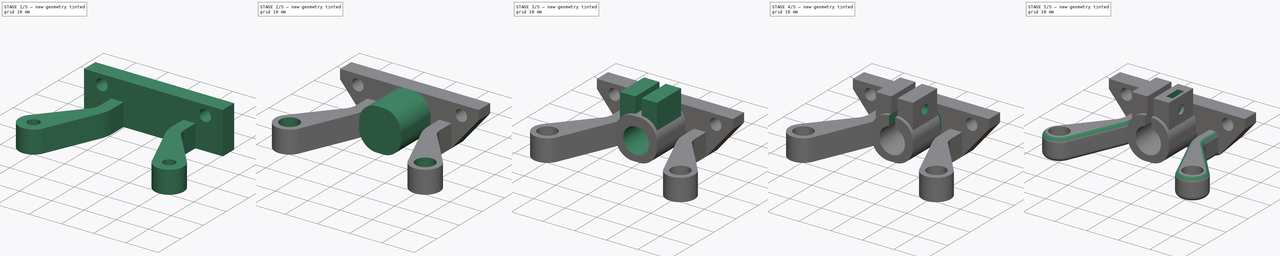
[diagram: build sequence overview — one tinted view per stage of 5, left to right]
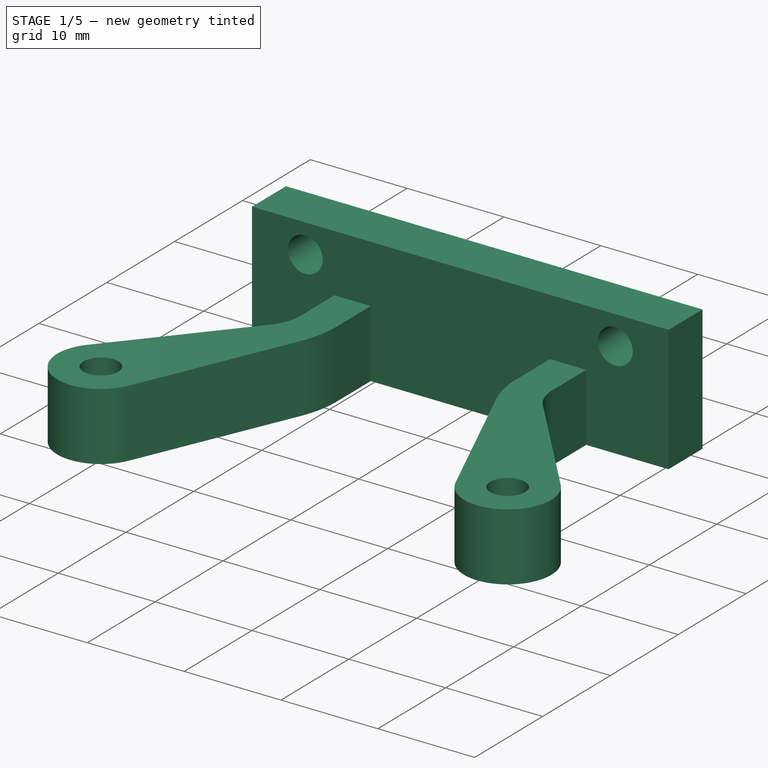
[diagram: stage 1 of 5 — iso view after this stage's code; geometry added in this stage tinted green]
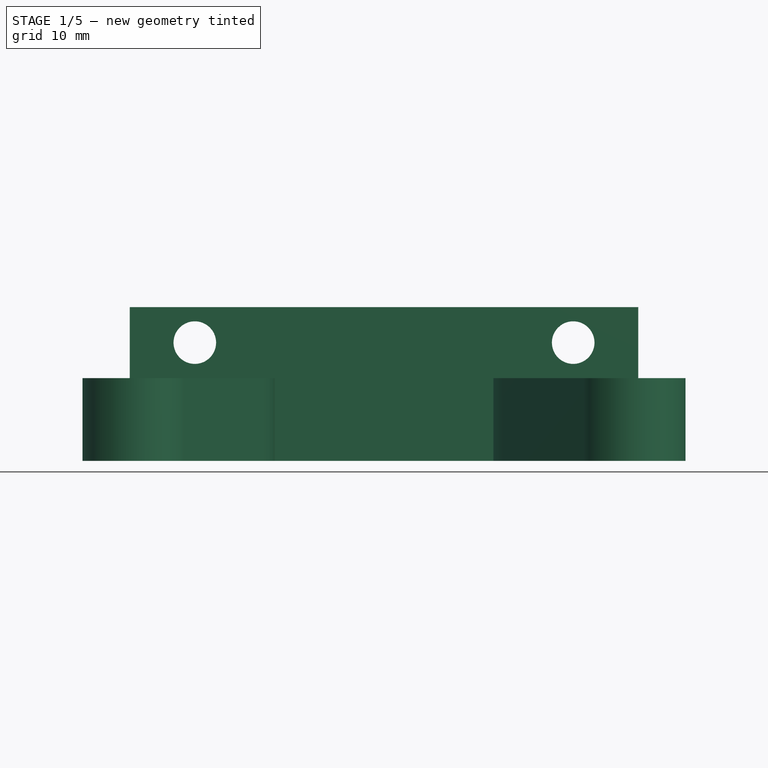
[diagram: stage 1 of 5 — front view after this stage's code; geometry added in this stage tinted green]
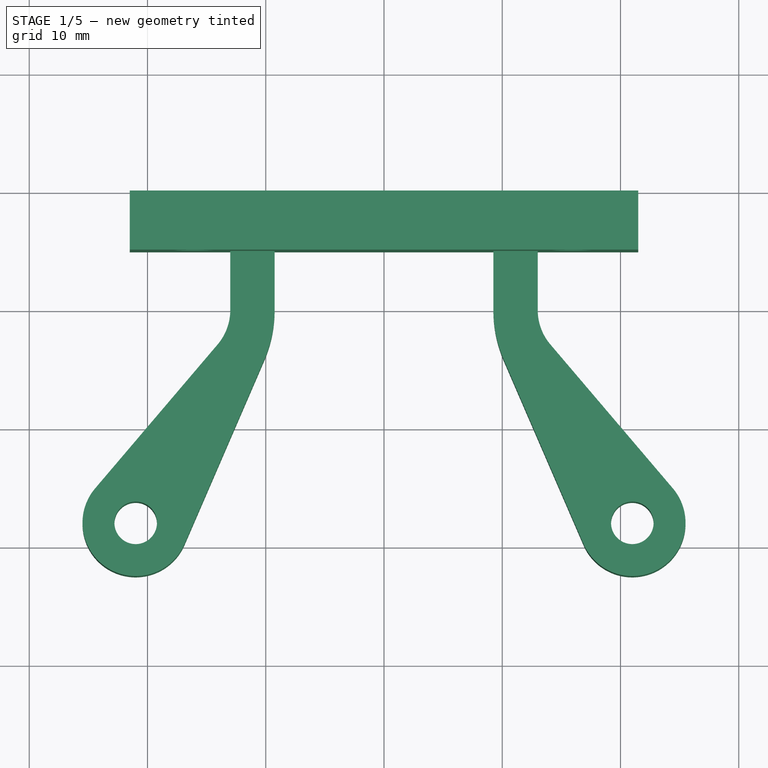
[diagram: stage 1 of 5 — top view after this stage's code; geometry added in this stage tinted green]
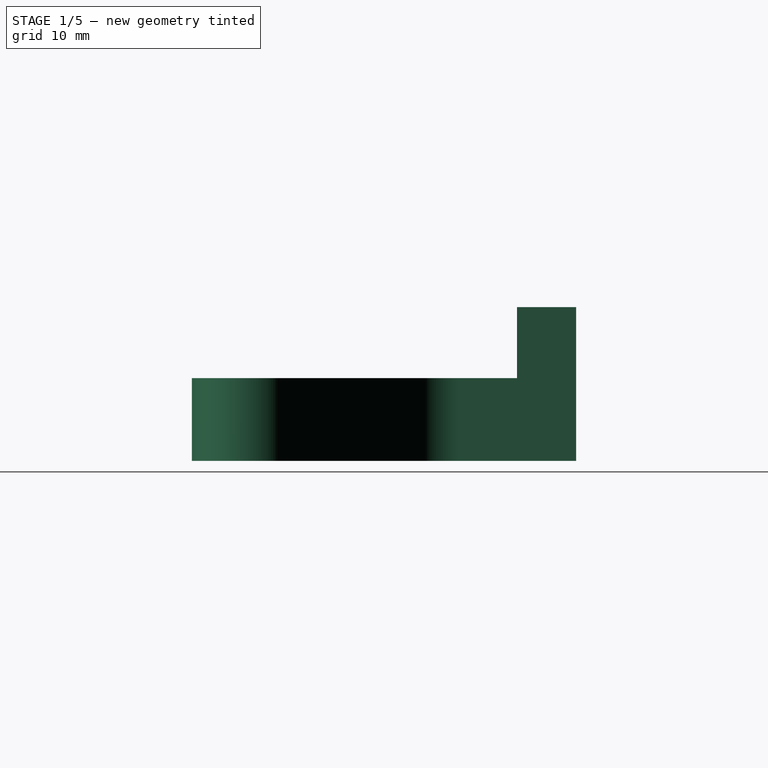
[diagram: stage 1 of 5 — right view after this stage's code; geometry added in this stage tinted green]
FCSTD DOCUMENT  (FreeCAD 1.0R39319 (Git))
Label: DragonPinda
License: All rights reserved
LicenseURL: https://en.wikipedia.org/wiki/All_rights_reserved
objects: Sketcher::SketchObject×14, PartDesign::Pocket×10, PartDesign::Pad×4, PartDesign::Fillet×2, App::VarSet×1, PartDesign::Body×1
note: 77 computed .brp shape members not serialized (recipe doc carries the construction recipe); baked Part::Feature solids carry a one-line shape summary decoded from their .brp

FEATURE [App::VarSet] VarSet
  BaseScrewDistance = 42
  BaseScrewFromTop = 28
  BendGap = 0.6
  BendGapDepth = 7.5
  ChannelGap = 2
  M25HeadDiameter = 4.6
  M25HeadHeight = 2.5
  M25HeatInsert5x4_Diameter = 2.9
  M25HeatInsert5x4_Height = 4.2
  M25NutDiameterMax = 5.8
  M25NutDiameterMin = 5.3
  M25NutHeigth = 2.1
  M25PassThroughDiameter = 2.8
  M25SelfTappingDiameter = 2.4
  M3HeadDiameter = 5.8
  M3HeadHeight = 3
  M3HeatInsert5x4_Diameter = 4.9
  M3HeatInsert5x4_Height = 4.2
  M3PassThroughDiameter = 3.6
  M3SelfTappingDiameter = 2.9
  PindaCenterOffset = 6
  PindaDiameter = 8.1
  PindaSupportLength = 18
  StructureHeight = 7
  SupportArc = 11
  TopHeight = 13
  TopScrewDistance = 32
  TopScrewFromBase = 10
  TopWidth = 43
FEATURE [Sketcher::SketchObject] Sketch
  ArcFitTolerance = 1e-06
  AttachmentSupport = -> [XY_Plane]
  FullyConstrained = true
  MakeInternals = false
  MapMode = 5
  expr: Constraints[25] = VarSet.BaseScrewDistance
  expr: Constraints[2] = VarSet.TopWidth
  expr: Constraints[37] = VarSet.BaseScrewFromTop
  expr: Constraints[59] = VarSet.M3PassThroughDiameter
  sketch-geometry (25):
    g0: LineSegment StartX=-21.5 StartY=0 StartZ=0 EndX=21.5 EndY=0 EndZ=0
    g1: LineSegment StartX=21.5 StartY=0 StartZ=0 EndX=21.5 EndY=-5 EndZ=0
    g2: LineSegment StartX=-21.5 StartY=0 StartZ=0 EndX=-21.5 EndY=-5 EndZ=0
    g3: LineSegment [constr] StartX=-13 StartY=-5 StartZ=0 EndX=13 EndY=-5 EndZ=0
    g4: LineSegment StartX=-21.5 StartY=-5 StartZ=0 EndX=-13 EndY=-5 EndZ=0
    g5: LineSegment StartX=21.5 StartY=-5 StartZ=0 EndX=13 EndY=-5 EndZ=0
    g6: LineSegment StartX=-13 StartY=-5 StartZ=0 EndX=-13 EndY=-10 EndZ=0
    g7: LineSegment StartX=13 StartY=-5 StartZ=0 EndX=13 EndY=-10 EndZ=0
    g8: Circle CenterX=-21 CenterY=-28 CenterZ=0 NormalX=0 NormalY=0 NormalZ=1 AngleXU=0 Radius=1.8
    g9: Circle CenterX=21 CenterY=-28 CenterZ=0 NormalX=0 NormalY=0 NormalZ=1 AngleXU=0 Radius=1.8
    g10: LineSegment [constr] StartX=-21 StartY=-28 StartZ=0 EndX=21 EndY=-28 EndZ=0
    g11: LineSegment StartX=-9.25 StartY=-5 StartZ=0 EndX=-9.25 EndY=-10 EndZ=0
    g12: LineSegment StartX=9.25 StartY=-5 StartZ=0 EndX=9.25 EndY=-10 EndZ=0
    g13: LineSegment StartX=-9.25 StartY=-5 StartZ=0 EndX=9.25 EndY=-5 EndZ=0
    g14: LineSegment [constr] StartX=0 StartY=0 StartZ=0 EndX=-1e-15 EndY=-28 EndZ=0
    g15: ArcOfCircle CenterX=-21 CenterY=-28 CenterZ=0 NormalX=0 NormalY=0 NormalZ=1 AngleXU=0 Radius=4.5 StartAngle=2.43653 EndAngle=5.87486
    g16: ArcOfCircle CenterX=21 CenterY=-28 CenterZ=0 NormalX=0 NormalY=0 NormalZ=1 AngleXU=0 Radius=4.5 StartAngle=3.54991 EndAngle=6.98825
    g17: ArcOfCircle CenterX=-17.5 CenterY=-10 CenterZ=0 NormalX=0 NormalY=0 NormalZ=1 AngleXU=0 Radius=4.5 StartAngle=5.57812 EndAngle=6.28319
    g18: ArcOfCircle CenterX=17.5 CenterY=-10 CenterZ=0 NormalX=0 NormalY=0 NormalZ=1 AngleXU=0 Radius=4.5 StartAngle=3.14159 EndAngle=3.84666
    g19: LineSegment StartX=14.0729 StartY=-12.9164 StartZ=0 EndX=24.4271 EndY=-25.0836 EndZ=0
    g20: LineSegment StartX=-14.0729 StartY=-12.9164 StartZ=0 EndX=-24.4271 EndY=-25.0836 EndZ=0
    g21: ArcOfCircle CenterX=-19.75 CenterY=-10 CenterZ=0 NormalX=0 NormalY=0 NormalZ=1 AngleXU=0 Radius=10.5 StartAngle=5.87486 EndAngle=6.28319
    g22: ArcOfCircle CenterX=19.75 CenterY=-10 CenterZ=0 NormalX=0 NormalY=0 NormalZ=1 AngleXU=0 Radius=10.5 StartAngle=3.14159 EndAngle=3.54991
    g23: LineSegment StartX=10.1132 StartY=-14.1692 StartZ=0 EndX=16.8699 EndY=-29.7868 EndZ=0
    g24: LineSegment StartX=-10.1132 StartY=-14.1692 StartZ=0 EndX=-16.8699 EndY=-29.7868 EndZ=0
  constraints (60):
    c: Horizontal(g0)
    c: Symmetric(g0,g0,g-1)
    c: Distance(g0) = 43
    c: Coincident(g1,g0)
    c: Vertical(g1)
    c: Coincident(g2,g0)
    c: Vertical(g2)
    c: Equal(g1,g2)
    c: Distance(g2) = 5
    c: Distance(g3) = 26
    c: Symmetric(g3,g3,g-2)
    c: Coincident(g4,g2)
    c: Coincident(g5,g1)
    c: Horizontal(g5)
    c: Coincident(g3,g5)
    c: Coincident(g4,g3)
    c: Coincident(g6,g3)
    c: Vertical(g6)
    c: Coincident(g7,g3)
    c: Vertical(g7)
    c: Distance(g6) = 5
    c: Equal(g6,g7)
    c: Coincident(g10,g8)
    c: Coincident(g10,g9)
    c: Symmetric(g9,g8,g-2)
    c: Distance(g10) = 42
    c: PointOnObject(g11,g3)
    c: Vertical(g11)
    c: Vertical(g12)
    c: Coincident(g13,g11)
    c: Coincident(g13,g12)
    c: Distance(g13) = 18.5
    c: Symmetric(g12,g11,g-2)
    c: Equal(g7,g12)
    c: Equal(g6,g11)
    c: Coincident(g14,g-1)
    c: Symmetric(g10,g10,g14)
    c: Distance(g14) = 28
    c: Coincident(g15,g8)
    c: Coincident(g16,g9)
    c: Equal(g15,g16)
    c: Diameter(g15) = 9
    c: Equal(g18,g15)
    c: Equal(g17,g16)
    c: Tangent(g17,g6) = 1.5708
    c: Tangent(g18,g7) = -1.5708
    c: Tangent(g19,g18) = -1.5708
    c: Tangent(g19,g16) = 1.5708
    c: Tangent(g20,g17) = 1.5708
    c: Tangent(g15,g20) = -1.5708
    c: Tangent(g21,g11) = 1.5708
    c: Tangent(g22,g12) = -1.5708
    c: Tangent(g23,g22) = -1.5708
    c: Tangent(g23,g16) = -1.5708
    c: Diameter(g22) = 21
    c: Equal(g22,g21)
    c: Tangent(g24,g21) = 1.5708
    c: Tangent(g24,g15) = 1.5708
    c: Equal(g8,g9)
    c: Diameter(g8) = 3.6
FEATURE [PartDesign::Pad] Pad  label="Base Structure"
  Direction = (0,0,1)
  Length = 7
  Length2 = 10
  Profile = -> Sketch
  ReferenceAxis = -> Sketch [N_Axis]
  Refine = true
  Suppressed = false
  Type = 0
  expr: Length = VarSet.StructureHeight
FEATURE [Sketcher::SketchObject] Sketch001
  ArcFitTolerance = 1e-06
  AttachmentSupport = -> [Pad]
  ExternalGeometry = -> [Pad]
  FullyConstrained = true
  MakeInternals = false
  MapMode = 5
  Placement = pos=(0,0,7) rot=(0,0,1;0rad)
  sketch-geometry (4):
    g0: LineSegment StartX=-21.5 StartY=0 StartZ=0 EndX=-21.5 EndY=-5 EndZ=0
    g1: LineSegment StartX=-21.5 StartY=-5 StartZ=0 EndX=21.5 EndY=-5 EndZ=0
    g2: LineSegment StartX=21.5 StartY=-5 StartZ=0 EndX=21.5 EndY=0 EndZ=0
    g3: LineSegment StartX=21.5 StartY=0 StartZ=0 EndX=-21.5 EndY=0 EndZ=0
  constraints (10):
    c: Coincident(g0,g1)
    c: Coincident(g1,g2)
    c: Coincident(g2,g3)
    c: Coincident(g3,g0)
    c: Vertical(g0)
    c: Vertical(g2)
    c: Horizontal(g1)
    c: Horizontal(g3)
    c: Coincident(g0,g-3)
    c: Coincident(g1,g-4)
FEATURE [PartDesign::Pad] Pad001  label="Top Support"
  BaseFeature = -> Pad
  Direction = (0,0,1)
  Length = 6
  Length2 = 10
  Profile = -> Sketch001
  ReferenceAxis = -> Sketch001 [N_Axis]
  Refine = true
  Suppressed = false
  Type = 0
  expr: Length = VarSet.TopHeight - VarSet.StructureHeight
FEATURE [Sketcher::SketchObject] Sketch002
  ArcFitTolerance = 1e-06
  AttachmentSupport = -> [Pad001]
  FullyConstrained = true
  MakeInternals = false
  MapMode = 5
  Placement = pos=(0,0,0) rot=(0,0.707107,0.707107;3.14159rad)
  expr: Constraints[3] = VarSet.TopScrewDistance
  expr: Constraints[5] = VarSet.M3PassThroughDiameter
  expr: Constraints[9] = VarSet.TopScrewFromBase
  sketch-geometry (4):
    g0: Circle CenterX=-16 CenterY=10 CenterZ=0 NormalX=0 NormalY=0 NormalZ=1 AngleXU=0 Radius=1.8
    g1: Circle CenterX=16 CenterY=10 CenterZ=0 NormalX=0 NormalY=0 NormalZ=1 AngleXU=0 Radius=1.8
    g2: LineSegment [constr] StartX=-16 StartY=10 StartZ=0 EndX=16 EndY=10 EndZ=0
    g3: LineSegment [constr] StartX=-16 StartY=10 StartZ=0 EndX=-16 EndY=0 EndZ=0
  constraints (10):
    c: Equal(g1,g0)
    c: Coincident(g2,g0)
    c: Coincident(g2,g1)
    c: Distance(g2) = 32
    c: Symmetric(g1,g0,g-2)
    c: Diameter(g0) = 3.6
    c: Coincident(g3,g0)
    c: PointOnObject(g3,g-1)
    c: Vertical(g3)
    c: Distance(g3) = 10
FEATURE [PartDesign::Pocket] Pocket  label="Top Screws"
  BaseFeature = -> Pad001
  Direction = (0,-1,2e-16)
  Length = 5
  Length2 = 5
  Profile = -> Sketch002
  ReferenceAxis = -> Sketch002 [N_Axis]
  Refine = true
  Suppressed = false
  Type = 1
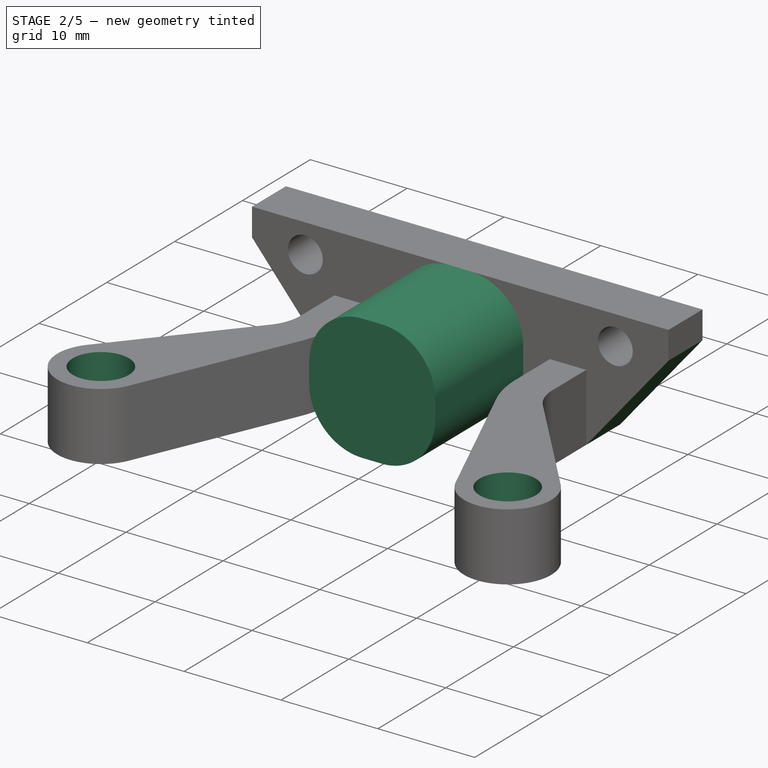
[diagram: stage 2 of 5 — iso view after this stage's code; geometry added in this stage tinted green]
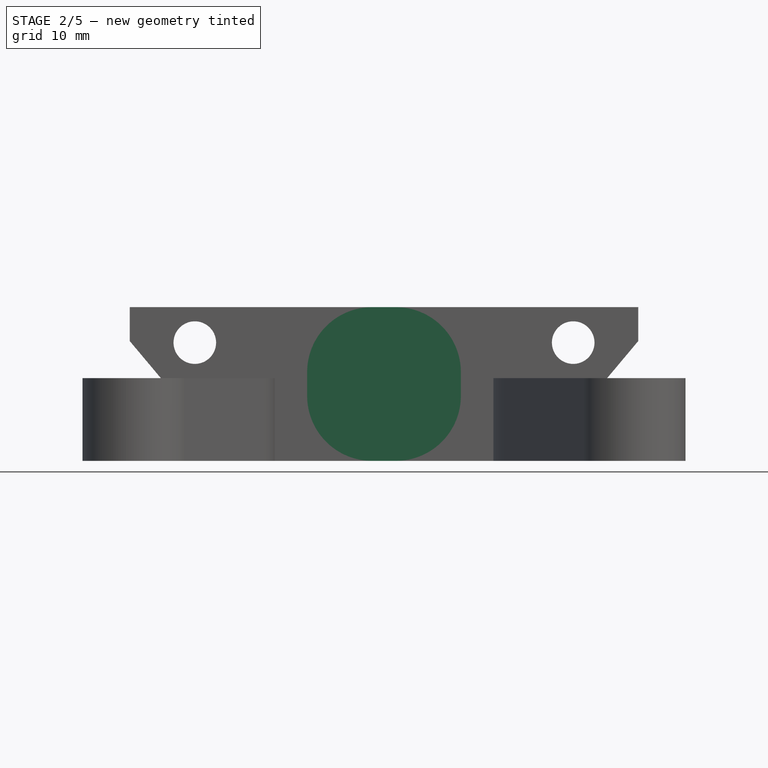
[diagram: stage 2 of 5 — front view after this stage's code; geometry added in this stage tinted green]
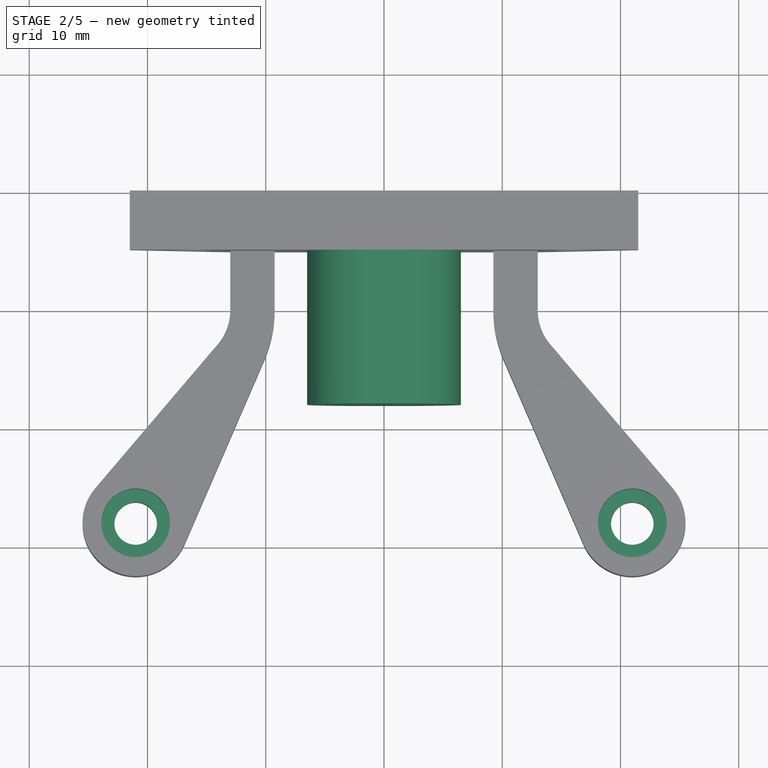
[diagram: stage 2 of 5 — top view after this stage's code; geometry added in this stage tinted green]
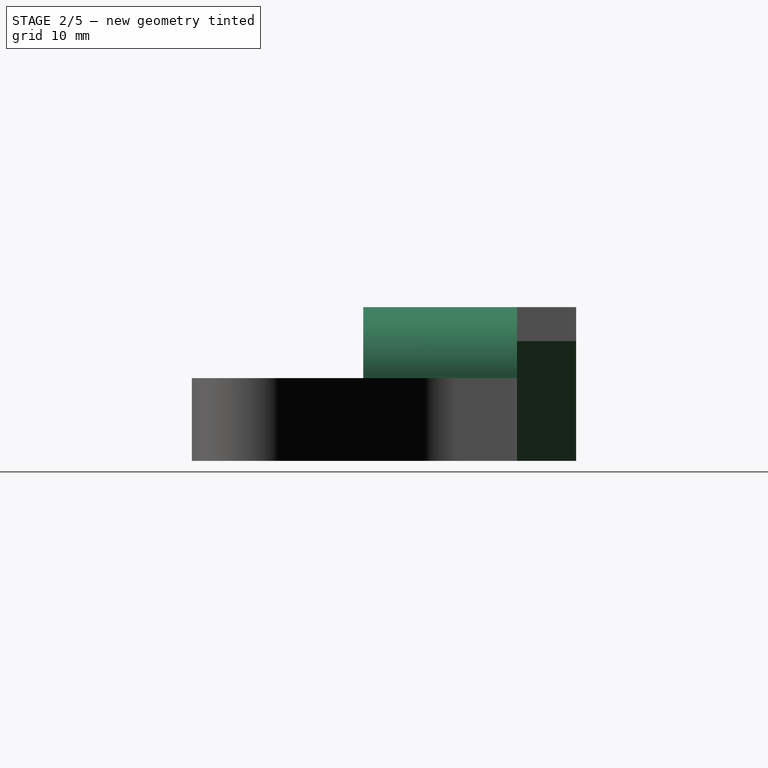
[diagram: stage 2 of 5 — right view after this stage's code; geometry added in this stage tinted green]
FEATURE [Sketcher::SketchObject] Sketch003
  ArcFitTolerance = 1e-06
  AttachmentSupport = -> [Pocket]
  FullyConstrained = true
  MakeInternals = false
  MapMode = 5
  Placement = pos=(0,0,0) rot=(0,0.707107,0.707107;3.14159rad)
  expr: Constraints[15] = VarSet.SupportArc
  expr: Constraints[16] = VarSet.TopHeight
  expr: Constraints[4] = VarSet.TopHeight
  sketch-geometry (12):
    g0: LineSegment StartX=-6.5 StartY=7.5 StartZ=0 EndX=-6.5 EndY=5.5 EndZ=0
    g1: LineSegment StartX=-1 StartY=0 StartZ=0 EndX=1 EndY=0 EndZ=0
    g2: LineSegment StartX=6.5 StartY=5.5 StartZ=0 EndX=6.5 EndY=7.5 EndZ=0
    g3: LineSegment StartX=1 StartY=13 StartZ=0 EndX=-1 EndY=13 EndZ=0
    g4: ArcOfCircle CenterX=1 CenterY=7.5 CenterZ=0 NormalX=0 NormalY=0 NormalZ=1 AngleXU=0 Radius=5.5 StartAngle=0 EndAngle=1.5708
    g5: GeomPoint [constr] X=6.5 Y=13 Z=0
    g6: ArcOfCircle CenterX=-1 CenterY=7.5 CenterZ=0 NormalX=0 NormalY=0 NormalZ=1 AngleXU=0 Radius=5.5 StartAngle=1.5708 EndAngle=3.14159
    g7: GeomPoint [constr] X=-6.5 Y=13 Z=0
    g8: ArcOfCircle CenterX=-1 CenterY=5.5 CenterZ=0 NormalX=0 NormalY=0 NormalZ=1 AngleXU=0 Radius=5.5 StartAngle=3.14159 EndAngle=4.71239
    g9: GeomPoint [constr] X=-6.5 Y=0 Z=0
    g10: ArcOfCircle CenterX=1 CenterY=5.5 CenterZ=0 NormalX=0 NormalY=0 NormalZ=1 AngleXU=0 Radius=5.5 StartAngle=4.71239 EndAngle=6.28319
    g11: GeomPoint [constr] X=6.5 Y=0 Z=0
  constraints (27):
    c: Vertical(g0)
    c: Vertical(g2)
    c: Horizontal(g3)
    c: PointOnObject(g11,g-1)
    c: Distance(g9,g7) = 13
    c: Symmetric(g9,g11,g-1)
    c: PointOnObject(g5,g2)
    c: PointOnObject(g5,g3)
    c: Tangent(g2,g4) = -1.5708
    c: Tangent(g3,g4) = -1.5708
    c: PointOnObject(g7,g0)
    c: PointOnObject(g7,g3)
    c: Tangent(g0,g6) = -1.5708
    c: Tangent(g3,g6) = -1.5708
    c: Equal(g4,g6)
    c: Diameter(g4) = 11
    c: Distance(g11,g9) = 13
    c: PointOnObject(g9,g0)
    c: PointOnObject(g9,g1)
    c: Tangent(g0,g8) = -1.5708
    c: Tangent(g1,g8) = -1.5708
    c: PointOnObject(g11,g1)
    c: PointOnObject(g11,g2)
    c: Tangent(g1,g10) = -1.5708
    c: Tangent(g2,g10) = -1.5708
    c: Equal(g10,g8)
    c: Equal(g4,g10)
FEATURE [PartDesign::Pad] Pad002  label="Pinda Support"
  BaseFeature = -> Pocket
  Direction = (0,1,-2e-16)
  Length = 18
  Length2 = 10
  Profile = -> Sketch003
  ReferenceAxis = -> Sketch003 [N_Axis]
  Refine = true
  Reversed = true
  Suppressed = false
  Type = 0
  expr: Length = VarSet.PindaSupportLength
FEATURE [Sketcher::SketchObject] Sketch004
  ArcFitTolerance = 1e-06
  AttachmentSupport = -> [Pad002]
  FullyConstrained = true
  MakeInternals = false
  MapMode = 5
  Placement = pos=(0,0,0) rot=(0,0.707107,0.707107;3.14159rad)
  expr: Constraints[0] = VarSet.PindaDiameter
  expr: Constraints[3] = VarSet.PindaCenterOffset
  sketch-geometry (2):
    g0: Circle CenterX=0 CenterY=6 CenterZ=0 NormalX=0 NormalY=0 NormalZ=1 AngleXU=0 Radius=4.05
    g1: LineSegment [constr] StartX=0 StartY=0 StartZ=0 EndX=0 EndY=6 EndZ=0
  constraints (5):
    c: Diameter(g0) = 8.1
    c: Coincident(g1,g-1)
    c: Coincident(g1,g0)
    c: Distance(g1) = 6
    c: Vertical(g1)
FEATURE [Sketcher::SketchObject] Sketch006
  ArcFitTolerance = 1e-06
  AttachmentSupport = -> [Pad002]
  ExternalGeometry = -> [Pad002]
  FullyConstrained = true
  MakeInternals = false
  MapMode = 5
  Placement = pos=(0,0,7) rot=(0,0,1;0rad)
  expr: Constraints[1] = VarSet.M3HeadDiameter
  sketch-geometry (2):
    g0: Circle CenterX=-21 CenterY=-28 CenterZ=0 NormalX=0 NormalY=0 NormalZ=1 AngleXU=0 Radius=2.9
    g1: Circle CenterX=21 CenterY=-28 CenterZ=0 NormalX=0 NormalY=0 NormalZ=1 AngleXU=0 Radius=2.9
  constraints (4):
    c: Equal(g0,g1)
    c: Diameter(g1) = 5.8
    c: Coincident(g1,g-4)
    c: Coincident(g0,g-3)
FEATURE [PartDesign::Pocket] Pocket003  label="Bottom Screws Recess"
  BaseFeature = -> Pad002
  Direction = (0,0,-1)
  Length = 3
  Length2 = 5
  Profile = -> Sketch006
  ReferenceAxis = -> Sketch006 [N_Axis]
  Refine = true
  Suppressed = false
  Type = 0
  expr: Length = VarSet.M3HeadHeight
FEATURE [Sketcher::SketchObject] Sketch007
  ArcFitTolerance = 1e-06
  AttachmentSupport = -> [Pocket003]
  ExternalGeometry = -> [Pocket003]
  FullyConstrained = true
  MakeInternals = false
  MapMode = 5
  Placement = pos=(0,-5,0) rot=(1,0,0;1.5708rad)
  sketch-geometry (6):
    g0: LineSegment StartX=-13 StartY=0 StartZ=0 EndX=-21.5 EndY=10.1299 EndZ=0
    g1: LineSegment StartX=13 StartY=0 StartZ=0 EndX=21.5 EndY=10.1299 EndZ=0
    g2: LineSegment StartX=-21.5 StartY=10.1299 StartZ=0 EndX=-21.5 EndY=0 EndZ=0
    g3: LineSegment StartX=-13 StartY=0 StartZ=0 EndX=-21.5 EndY=0 EndZ=0
    g4: LineSegment StartX=13 StartY=0 StartZ=0 EndX=21.5 EndY=0 EndZ=0
    g5: LineSegment StartX=21.5 StartY=10.1299 StartZ=0 EndX=21.5 EndY=0 EndZ=0
  constraints (14):
    c: Coincident(g0,g-5)
    c: Coincident(g1,g-3)
    c: PointOnObject(g1,g-4)
    c: PointOnObject(g0,g-6)
    c: Angle(g0) = 2.26893
    c: Angle(g1) = 0.872665
    c: Coincident(g2,g0)
    c: Coincident(g2,g-6)
    c: Coincident(g3,g0)
    c: Coincident(g3,g2)
    c: Coincident(g4,g1)
    c: Coincident(g4,g-4)
    c: Coincident(g5,g1)
    c: Coincident(g5,g4)
FEATURE [PartDesign::Pocket] Pocket004  label="Angled Face"
  BaseFeature = -> Pocket003
  Direction = (0,1,-2e-16)
  Length = 5
  Length2 = 5
  Profile = -> Sketch007
  ReferenceAxis = -> Sketch007 [N_Axis]
  Refine = true
  Suppressed = false
  Type = 1
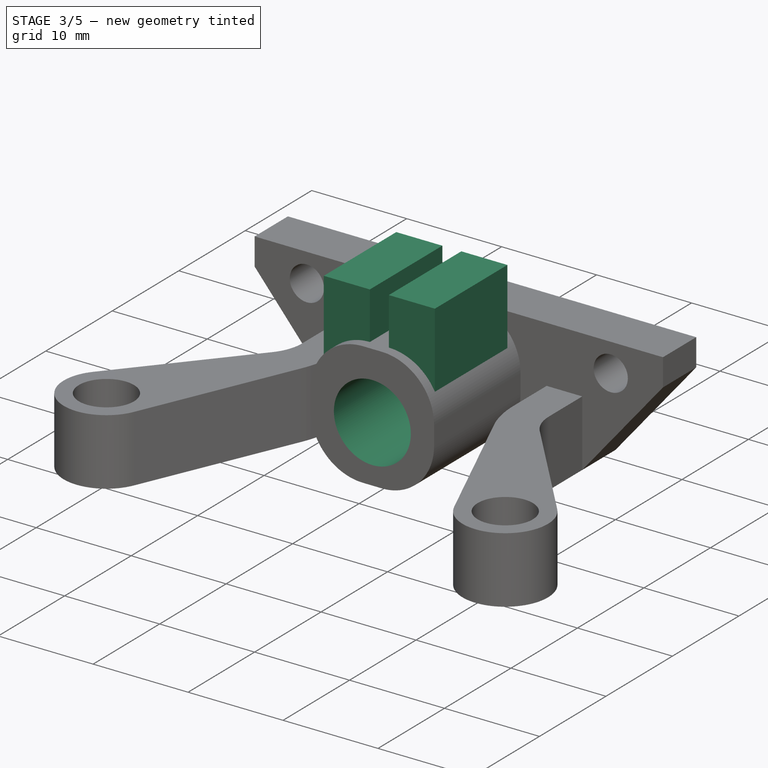
[diagram: stage 3 of 5 — iso view after this stage's code; geometry added in this stage tinted green]
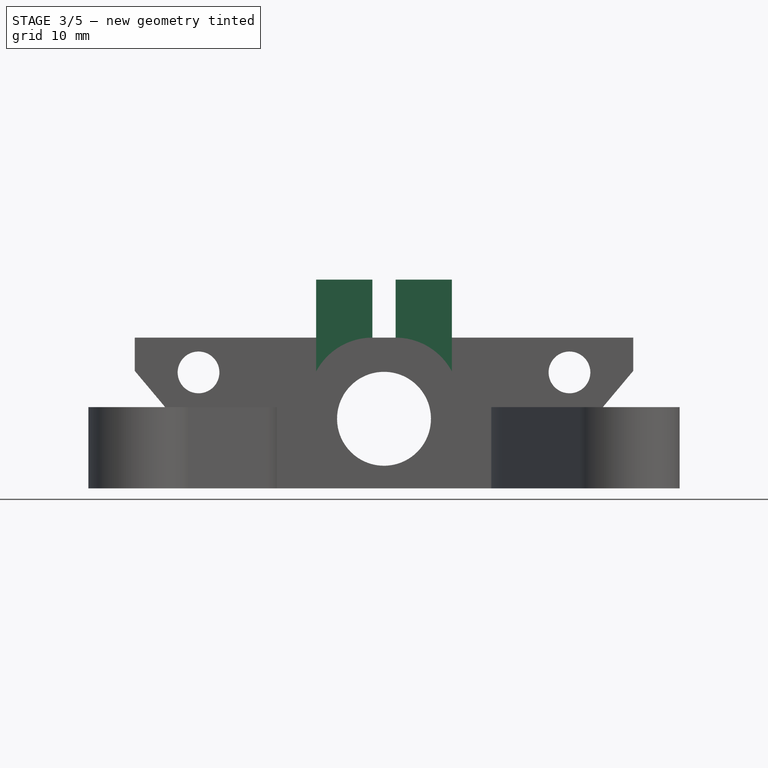
[diagram: stage 3 of 5 — front view after this stage's code; geometry added in this stage tinted green]
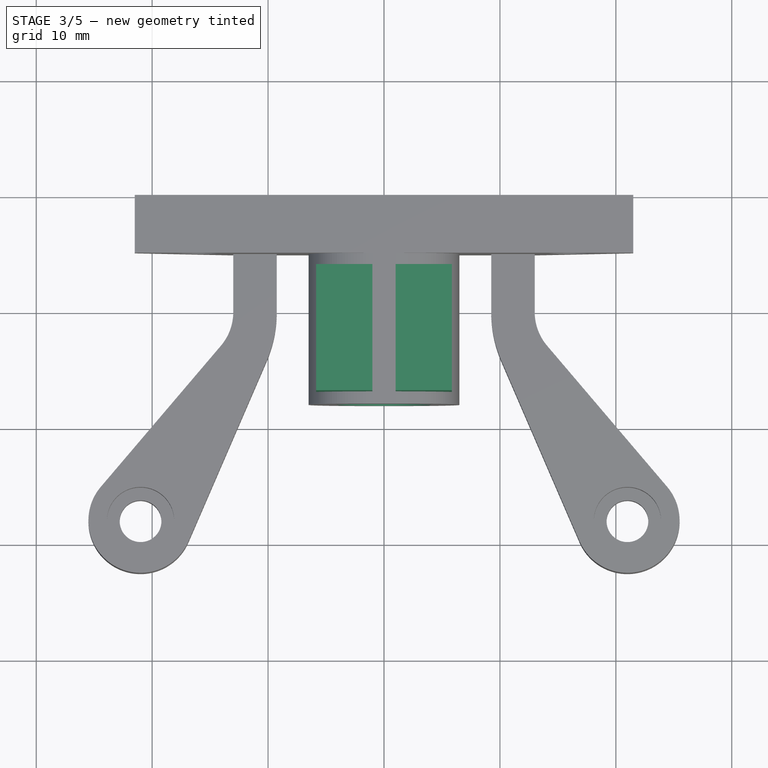
[diagram: stage 3 of 5 — top view after this stage's code; geometry added in this stage tinted green]
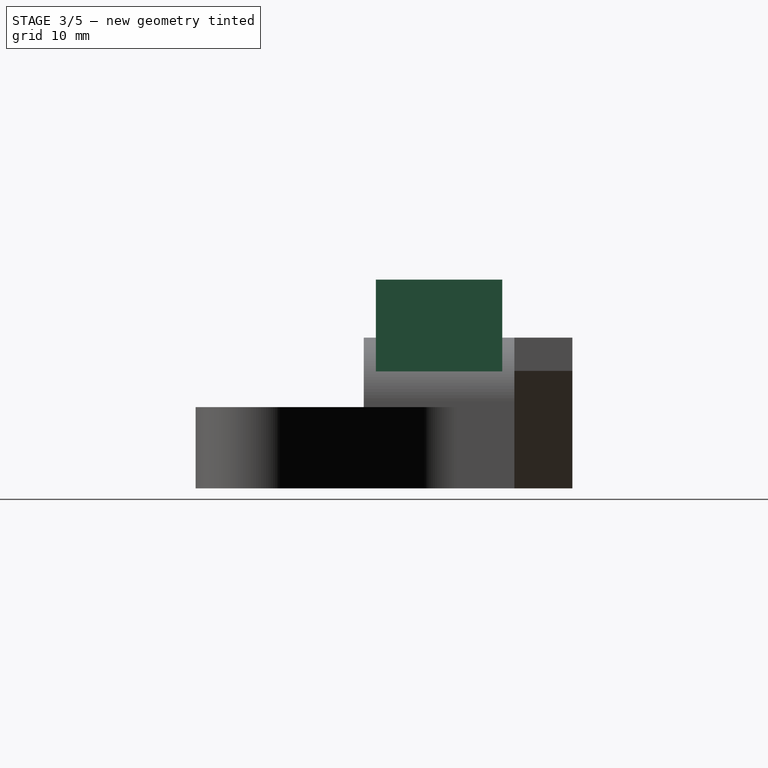
[diagram: stage 3 of 5 — right view after this stage's code; geometry added in this stage tinted green]
FEATURE [Sketcher::SketchObject] Sketch008
  ArcFitTolerance = 1e-06
  AttachmentSupport = -> [Pocket004]
  ExternalGeometry = -> [Pocket004]
  FullyConstrained = true
  MakeInternals = false
  MapMode = 5
  Placement = pos=(0,0,13) rot=(0,0,1;0rad)
  expr: Constraints[13] = VarSet.ChannelGap
  expr: Constraints[6] = VarSet.M25HeatInsert5x4_Diameter + 8 mm
  expr: Constraints[7] = VarSet.M25HeatInsert5x4_Height + VarSet.ChannelGap + 3 mm + VarSet.M25HeadHeight
  sketch-geometry (12):
    g0: LineSegment StartX=-5.85 StartY=-6.05 StartZ=0 EndX=-5.85 EndY=-16.95 EndZ=0
    g1: LineSegment [constr] StartX=-5.85 StartY=-16.95 StartZ=0 EndX=5.85 EndY=-16.95 EndZ=0
    g2: LineSegment StartX=5.85 StartY=-16.95 StartZ=0 EndX=5.85 EndY=-6.05 EndZ=0
    g3: LineSegment StartX=-5.85 StartY=-16.95 StartZ=0 EndX=-1 EndY=-16.95 EndZ=0
    g4: LineSegment [constr] StartX=-1 StartY=-16.95 StartZ=0 EndX=1 EndY=-16.95 EndZ=0
    g5: LineSegment StartX=5.85 StartY=-16.95 StartZ=0 EndX=1 EndY=-16.95 EndZ=0
    g6: LineSegment StartX=-1 StartY=-16.95 StartZ=0 EndX=-1 EndY=-6.05 EndZ=0
    g7: LineSegment StartX=1 StartY=-16.95 StartZ=0 EndX=1 EndY=-6.05 EndZ=0
    g8: LineSegment StartX=5.85 StartY=-6.05 StartZ=0 EndX=1 EndY=-6.05 EndZ=0
    g9: LineSegment StartX=-5.85 StartY=-6.05 StartZ=0 EndX=-1 EndY=-6.05 EndZ=0
    g10: LineSegment [constr] StartX=5.85 StartY=-6.05 StartZ=0 EndX=5.85 EndY=-5 EndZ=0
    g11: LineSegment [constr] StartX=5.85 StartY=-16.95 StartZ=0 EndX=5.85 EndY=-18 EndZ=0
  constraints (33):
    c: Coincident(g0,g1)
    c: Coincident(g1,g2)
    c: Vertical(g0)
    c: Vertical(g2)
    c: Horizontal(g1)
    c: Symmetric(g0,g2,g-2)
    c: Distance(g2) = 10.9
    c: Distance(g1) = 11.7
    c: Coincident(g3,g0)
    c: Coincident(g4,g3)
    c: Horizontal(g4)
    c: Coincident(g5,g1)
    c: Coincident(g5,g4)
    c: Distance(g4) = 2
    c: Equal(g5,g3)
    c: Horizontal(g5)
    c: Coincident(g6,g3)
    c: Vertical(g6)
    c: Coincident(g7,g4)
    c: Vertical(g7)
    c: Coincident(g8,g2)
    c: Horizontal(g8)
    c: Coincident(g9,g0)
    c: Horizontal(g9)
    c: Coincident(g6,g9)
    c: Coincident(g7,g8)
    c: Coincident(g10,g2)
    c: Vertical(g10)
    c: Coincident(g11,g1)
    c: Vertical(g11)
    c: PointOnObject(g11,g-4)
    c: PointOnObject(g10,g-3)
    c: Equal(g10,g11)
FEATURE [PartDesign::Pad] Pad003  label="Brace"
  BaseFeature = -> Pocket004
  Direction = (0,0,1)
  Length = 5
  Length2 = 3
  Profile = -> Sketch008
  ReferenceAxis = -> Sketch008 [N_Axis]
  Refine = true
  Suppressed = false
  Type = 4
FEATURE [PartDesign::Pocket] Pocket001  label="Pinda Tunnel"
  BaseFeature = -> Pad003
  Direction = (0,-1,2e-16)
  Length = 5
  Length2 = 5
  Profile = -> Sketch004
  ReferenceAxis = -> Sketch004 [N_Axis]
  Refine = true
  Suppressed = false
  Type = 1
FEATURE [Sketcher::SketchObject] Sketch009
  ArcFitTolerance = 1e-06
  AttachmentSupport = -> [Pocket001]
  ExternalGeometry = -> [Pocket001]
  FullyConstrained = true
  MakeInternals = false
  MapMode = 5
  Placement = pos=(-5.85,0,0) rot=(0.57735,-0.57735,-0.57735;2.0944rad)
  expr: Constraints[0] = VarSet.M25PassThroughDiameter
  sketch-geometry (3):
    g0: Circle CenterX=11.5 CenterY=14.0469 CenterZ=0 NormalX=0 NormalY=0 NormalZ=1 AngleXU=0 Radius=1.4
    g1: LineSegment [constr] StartX=16.95 StartY=10.0937 StartZ=0 EndX=11.5 EndY=14.0469 EndZ=0
    g2: LineSegment [constr] StartX=6.05 StartY=18 StartZ=0 EndX=11.5 EndY=14.0469 EndZ=0
  constraints (7):
    c: Diameter(g0) = 2.8
    c: Coincident(g1,g-4)
    c: Coincident(g1,g0)
    c: Coincident(g2,g-3)
    c: Coincident(g2,g0)
    c: Equal(g2,g1)
    c: Parallel(g1,g2)
FEATURE [Sketcher::SketchObject] Sketch015
  ArcFitTolerance = 1e-06
  AttachmentSupport = -> [Pocket001]
  ExternalGeometry = -> [Pocket001]
  FullyConstrained = true
  MakeInternals = false
  MapMode = 5
  Placement = pos=(0,0,0) rot=(0,0.707107,0.707107;3.14159rad)
  expr: Constraints[1] = VarSet.PindaDiameter + 0.5 mm
  sketch-geometry (1):
    g0: Circle CenterX=0 CenterY=6 CenterZ=0 NormalX=0 NormalY=0 NormalZ=1 AngleXU=0 Radius=4.3
  constraints (2):
    c: Coincident(g0,g-3)
    c: Diameter(g0) = 8.6
FEATURE [PartDesign::Pocket] Pocket011  label="Larger Pinda Entry"
  BaseFeature = -> Pocket001
  Direction = (0,-1,2e-16)
  Length = 8
  Length2 = 5
  Profile = -> Sketch015
  ReferenceAxis = -> Sketch015 [N_Axis]
  Refine = true
  Suppressed = false
  Type = 0
FEATURE [PartDesign::Fillet] Fillet  label="Rounded Pinda Entry"
  Base = -> Pocket011 [Edge31]
  BaseFeature = -> Pocket011
  Radius = 2
  Refine = true
  SupportTransform = false
  Suppressed = false
  UseAllEdges = false
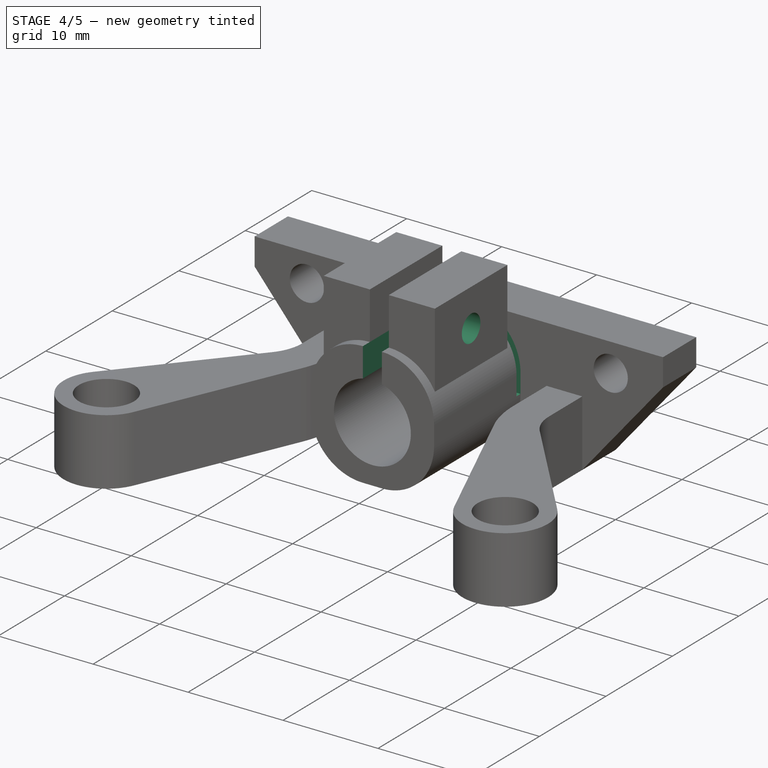
[diagram: stage 4 of 5 — iso view after this stage's code; geometry added in this stage tinted green]
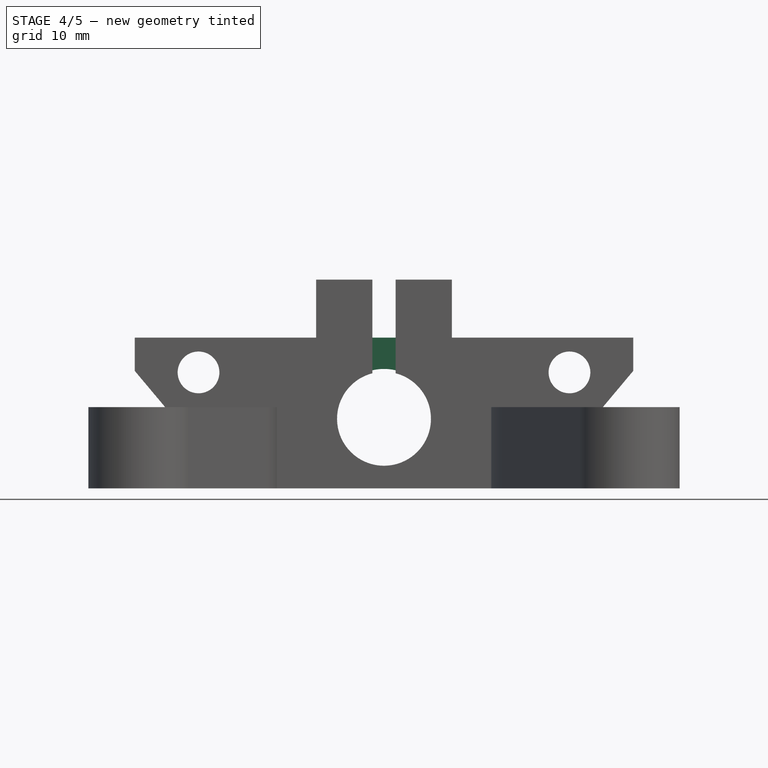
[diagram: stage 4 of 5 — front view after this stage's code; geometry added in this stage tinted green]
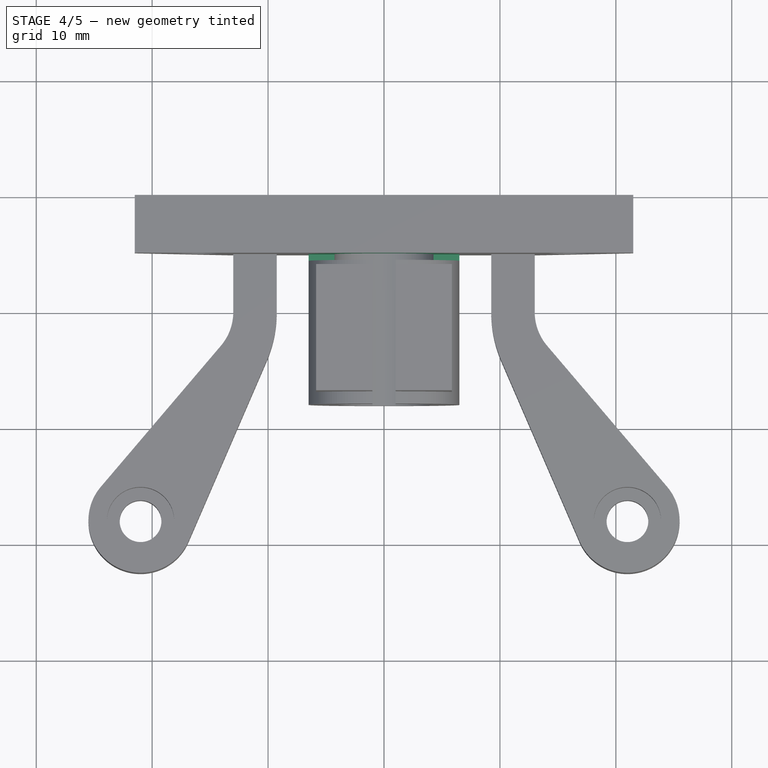
[diagram: stage 4 of 5 — top view after this stage's code; geometry added in this stage tinted green]
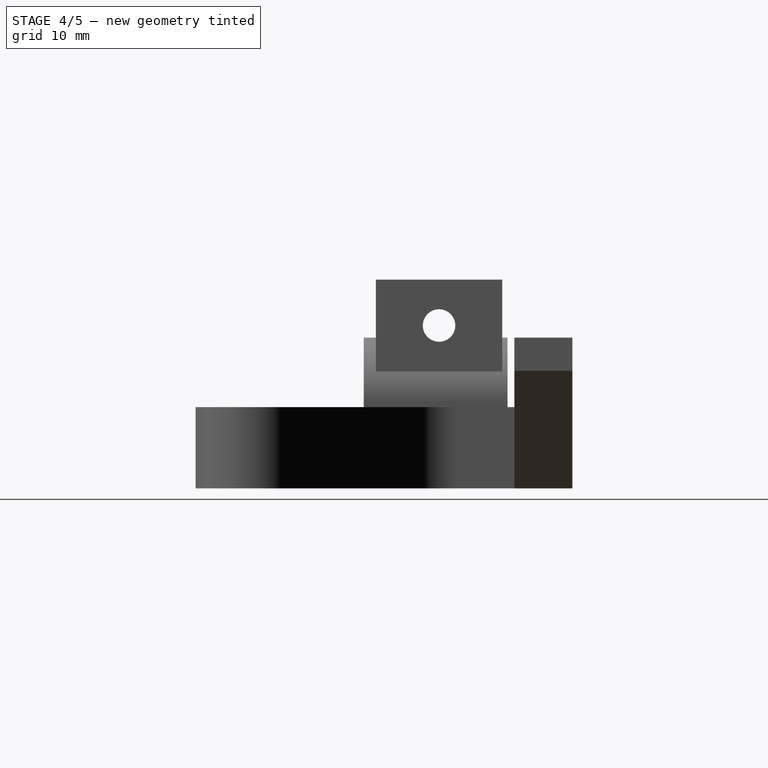
[diagram: stage 4 of 5 — right view after this stage's code; geometry added in this stage tinted green]
FEATURE [PartDesign::Pocket] Pocket005  label="Brace Screw hole"
  BaseFeature = -> Fillet
  Direction = (1,0,0)
  Length = 5
  Length2 = 5
  Profile = -> Sketch009
  ReferenceAxis = -> Sketch009 [N_Axis]
  Refine = true
  Suppressed = false
  Type = 1
FEATURE [Sketcher::SketchObject] Sketch011
  ArcFitTolerance = 1e-06
  AttachmentSupport = -> [Pocket005]
  ExternalGeometry = -> [Pocket005]
  FullyConstrained = true
  MakeInternals = false
  MapMode = 5
  Placement = pos=(-5.85,0,0) rot=(0.57735,-0.57735,-0.57735;2.0944rad)
  expr: Constraints[0] = VarSet.M25HeadDiameter
  sketch-geometry (1):
    g0: Circle CenterX=11.5 CenterY=14.0469 CenterZ=0 NormalX=0 NormalY=0 NormalZ=1 AngleXU=0 Radius=2.3
  constraints (2):
    c: Diameter(g0) = 4.6
    c: Coincident(g0,g-3)
FEATURE [PartDesign::Pocket] Pocket007  label="Brace Screw Head"
  BaseFeature = -> Pocket005
  Direction = (1,0,0)
  Length = 2.5
  Length2 = 5
  Profile = -> Sketch011
  ReferenceAxis = -> Sketch011 [N_Axis]
  Refine = true
  Suppressed = false
  Type = 0
  expr: Length = VarSet.M25HeadHeight
FEATURE [Sketcher::SketchObject] Sketch012
  ArcFitTolerance = 1e-06
  AttachmentSupport = -> [Pocket007]
  ExternalGeometry = -> [Pocket007]
  FullyConstrained = true
  MakeInternals = false
  MapMode = 5
  Placement = pos=(0,0,13) rot=(0,0,1;0rad)
  expr: Constraints[17] = VarSet.BendGap
  sketch-geometry (8):
    g0: LineSegment StartX=-1 StartY=-18 StartZ=0 EndX=1 EndY=-18 EndZ=0
    g1: LineSegment StartX=1 StartY=-18 StartZ=0 EndX=1 EndY=-5.6 EndZ=0
    g2: LineSegment StartX=-1 StartY=-18 StartZ=0 EndX=-1 EndY=-5.6 EndZ=0
    g3: LineSegment StartX=-6.5 StartY=-5 StartZ=0 EndX=6.5 EndY=-5 EndZ=0
    g4: LineSegment StartX=6.5 StartY=-5 StartZ=0 EndX=6.5 EndY=-5.6 EndZ=0
    g5: LineSegment StartX=6.5 StartY=-5.6 StartZ=0 EndX=1 EndY=-5.6 EndZ=0
    g6: LineSegment StartX=-6.5 StartY=-5 StartZ=0 EndX=-6.5 EndY=-5.6 EndZ=0
    g7: LineSegment StartX=-6.5 StartY=-5.6 StartZ=0 EndX=-1 EndY=-5.6 EndZ=0
  constraints (20):
    c: Coincident(g0,g-6)
    c: Coincident(g0,g-5)
    c: Coincident(g1,g0)
    c: Vertical(g1)
    c: Coincident(g2,g0)
    c: Vertical(g2)
    c: Equal(g1,g2)
    c: Coincident(g3,g-4)
    c: Coincident(g3,g-3)
    c: Coincident(g4,g3)
    c: PointOnObject(g4,g-3)
    c: Coincident(g5,g4)
    c: Horizontal(g5)
    c: Coincident(g6,g3)
    c: PointOnObject(g6,g-4)
    c: Coincident(g7,g6)
    c: Horizontal(g7)
    c: Distance(g4) = 0.6
    c: Coincident(g1,g5)
    c: Coincident(g2,g7)
FEATURE [PartDesign::Pocket] Pocket008  label="Tunnel Cut"
  BaseFeature = -> Pocket007
  Direction = (0,0,-1)
  Length = 7.5
  Length2 = 5
  Profile = -> Sketch012
  ReferenceAxis = -> Sketch012 [N_Axis]
  Refine = true
  Suppressed = false
  Type = 0
  expr: Length = VarSet.BendGapDepth
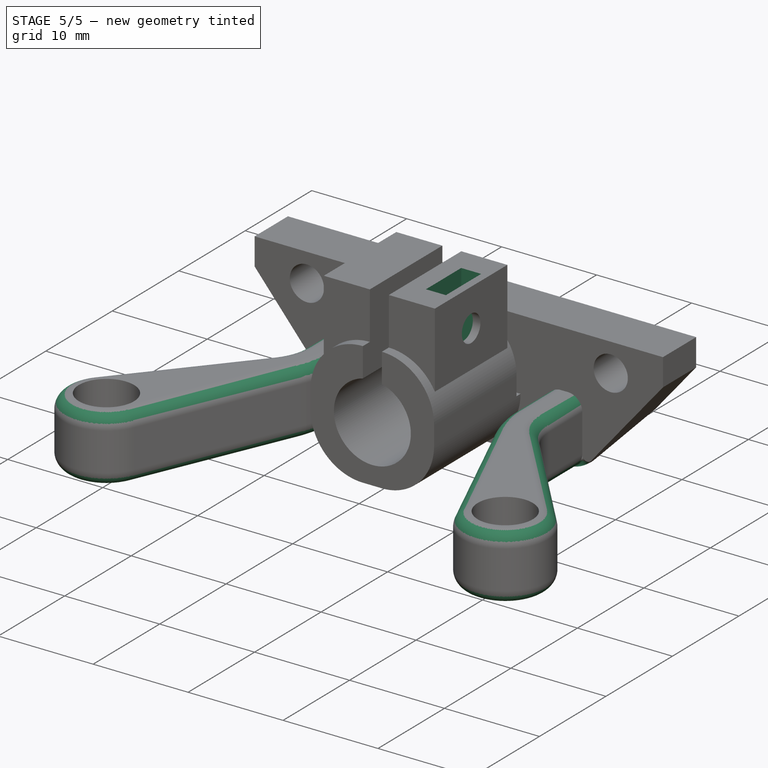
[diagram: stage 5 of 5 — iso view after this stage's code; geometry added in this stage tinted green]
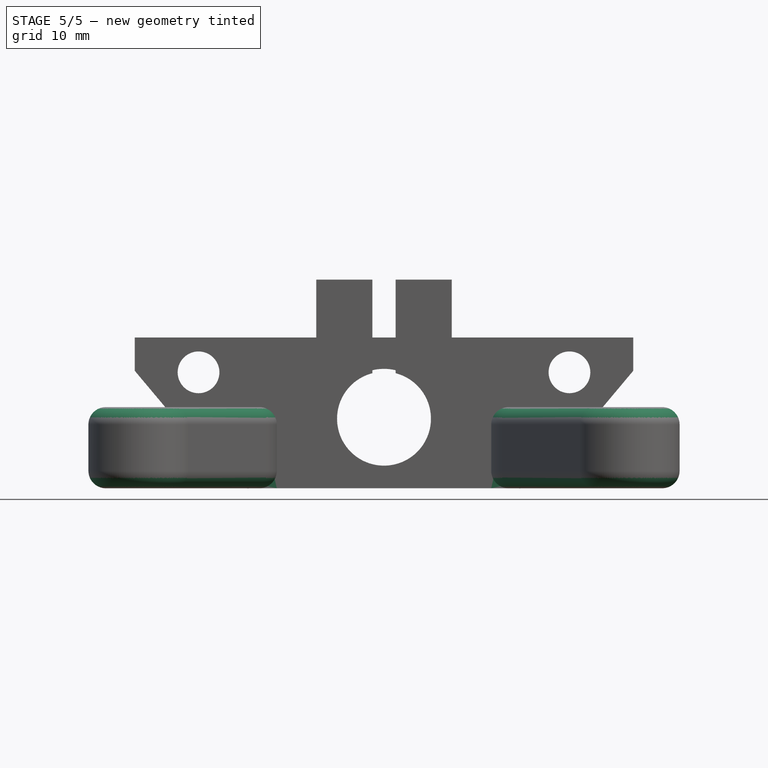
[diagram: stage 5 of 5 — front view after this stage's code; geometry added in this stage tinted green]
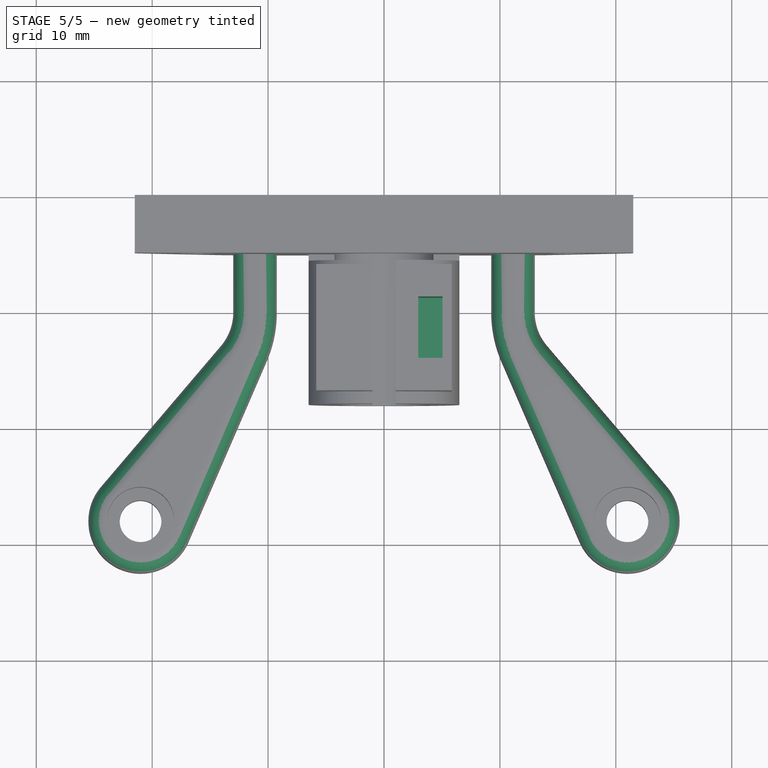
[diagram: stage 5 of 5 — top view after this stage's code; geometry added in this stage tinted green]
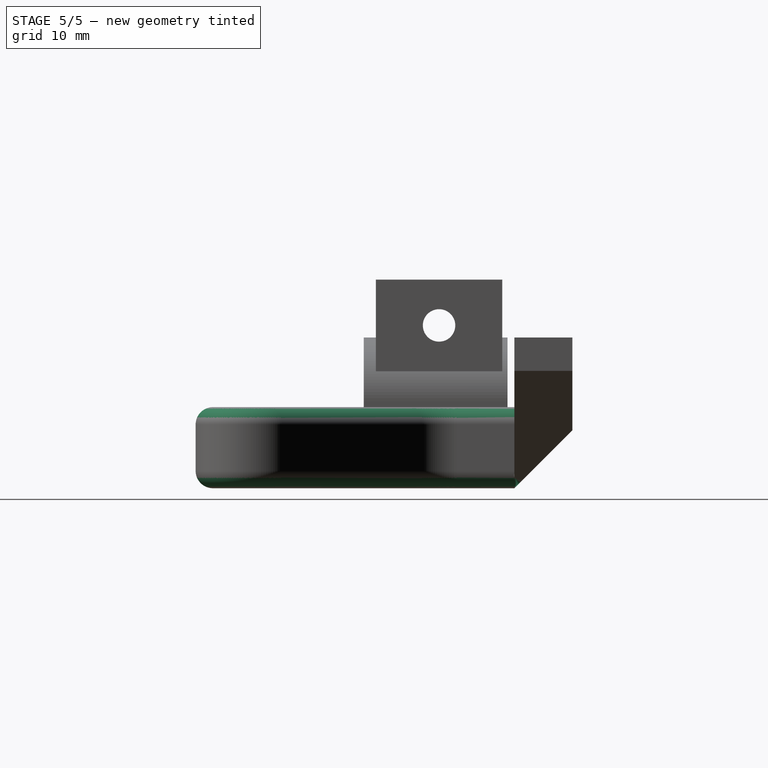
[diagram: stage 5 of 5 — right view after this stage's code; geometry added in this stage tinted green]
FEATURE [Sketcher::SketchObject] Sketch013
  ArcFitTolerance = 1e-06
  AttachmentSupport = -> [Pocket008]
  ExternalGeometry = -> [Pocket008]
  FullyConstrained = true
  MakeInternals = false
  MapMode = 5
  Placement = pos=(0,0,18) rot=(0,0,1;0rad)
  expr: Constraints[8] = VarSet.M25NutHeigth
  expr: Constraints[9] = VarSet.M25NutDiameterMin
  sketch-geometry (6):
    g0: LineSegment StartX=2.95 StartY=-8.85 StartZ=0 EndX=2.95 EndY=-14.15 EndZ=0
    g1: LineSegment StartX=2.95 StartY=-14.15 StartZ=0 EndX=5.05 EndY=-14.15 EndZ=0
    g2: LineSegment StartX=5.05 StartY=-14.15 StartZ=0 EndX=5.05 EndY=-8.85 EndZ=0
    g3: LineSegment StartX=5.05 StartY=-8.85 StartZ=0 EndX=2.95 EndY=-8.85 EndZ=0
    g4: LineSegment [constr] StartX=5.05 StartY=-8.85 StartZ=0 EndX=5.85 EndY=-6.05 EndZ=0
    g5: LineSegment [constr] StartX=5.85 StartY=-16.95 StartZ=0 EndX=5.05 EndY=-14.15 EndZ=0
  constraints (16):
    c: Coincident(g0,g1)
    c: Coincident(g1,g2)
    c: Coincident(g2,g3)
    c: Coincident(g3,g0)
    c: Vertical(g0)
    c: Vertical(g2)
    c: Horizontal(g1)
    c: Horizontal(g3)
    c: Distance(g3) = 2.1
    c: Distance(g2) = 5.3
    c: Coincident(g4,g2)
    c: Coincident(g4,g-3)
    c: Coincident(g5,g-4)
    c: Coincident(g5,g1)
    c: Equal(g5,g4)
    c: DistanceX(g1,g5) = 0.8
FEATURE [PartDesign::Pocket] Pocket009  label="Brace Nut"
  BaseFeature = -> Pocket008
  Direction = (0,0,-1)
  Length = 7
  Length2 = 5
  Profile = -> Sketch013
  ReferenceAxis = -> Sketch013 [N_Axis]
  Refine = true
  Suppressed = false
  Type = 0
FEATURE [Sketcher::SketchObject] Sketch014
  ArcFitTolerance = 1e-06
  AttachmentSupport = -> [Pocket009]
  FullyConstrained = true
  MakeInternals = false
  MapMode = 5
  Placement = pos=(21.5,0,0) rot=(0.57735,0.57735,0.57735;2.0944rad)
  sketch-geometry (3):
    g0: LineSegment StartX=0 StartY=0 StartZ=0 EndX=0 EndY=5 EndZ=0
    g1: LineSegment StartX=0 StartY=0 StartZ=0 EndX=-5 EndY=0 EndZ=0
    g2: LineSegment StartX=-5 StartY=0 StartZ=0 EndX=0 EndY=5 EndZ=0
  constraints (8):
    c: Coincident(g0,g-1)
    c: PointOnObject(g0,g-2)
    c: Coincident(g1,g0)
    c: PointOnObject(g1,g-1)
    c: Equal(g1,g0)
    c: Distance(g0) = 5
    c: Coincident(g2,g1)
    c: Coincident(g2,g0)
FEATURE [PartDesign::Pocket] Pocket010  label="Angled Base"
  BaseFeature = -> Pocket009
  Direction = (-1,0,0)
  Length = 5
  Length2 = 5
  Profile = -> Sketch014
  ReferenceAxis = -> Sketch014 [N_Axis]
  Refine = true
  Suppressed = false
  Type = 1
FEATURE [PartDesign::Fillet] Fillet001  label="Finishing"
  Base = -> Pocket010 [Edge56,Edge120,Edge143,Edge77]
  BaseFeature = -> Pocket010
  Radius = 1.5
  Refine = true
  SupportTransform = false
  Suppressed = false
  UseAllEdges = false
FEATURE [PartDesign::Body] Body
  AllowCompound = false
  Group = -> [Sketch,Pad,Sketch001,Pad001,Sketch002,Pocket,Sketch003,Pad002,Sketch008,Sketch004,Sketch006,Pocket003,Sketch007,Pocket004,Pad003,Pocket001,Pocket011,Fillet,Sketch009,Pocket005,Sketch011,Pocket007,Sketch012,Pocket008,Sketch013,Pocket009,Sketch014,Pocket010,Sketch015,Fillet001]
  Origin = -> Origin
  Tip = -> Fillet001
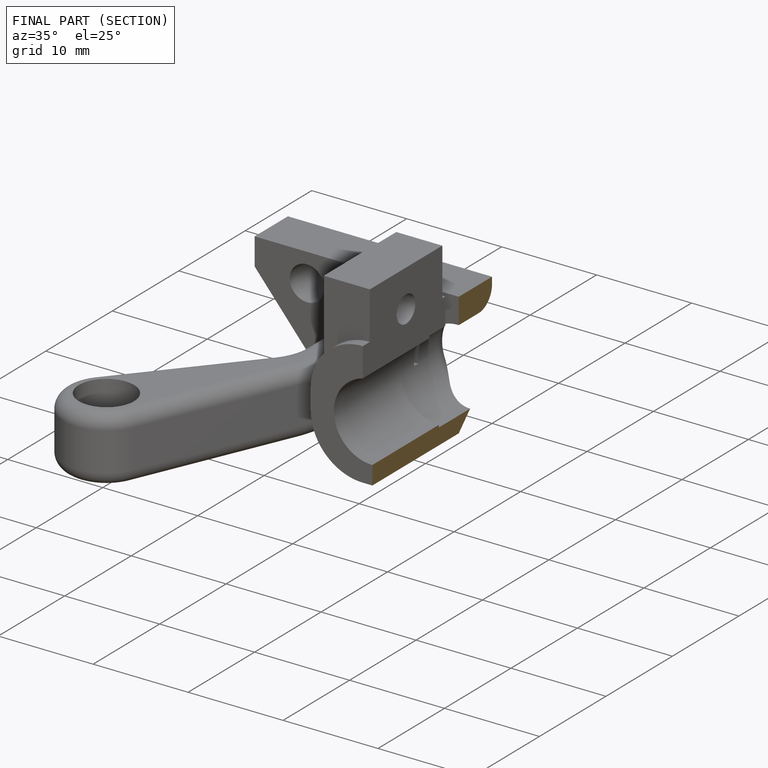
[diagram: finished part — half-section view (interior)]
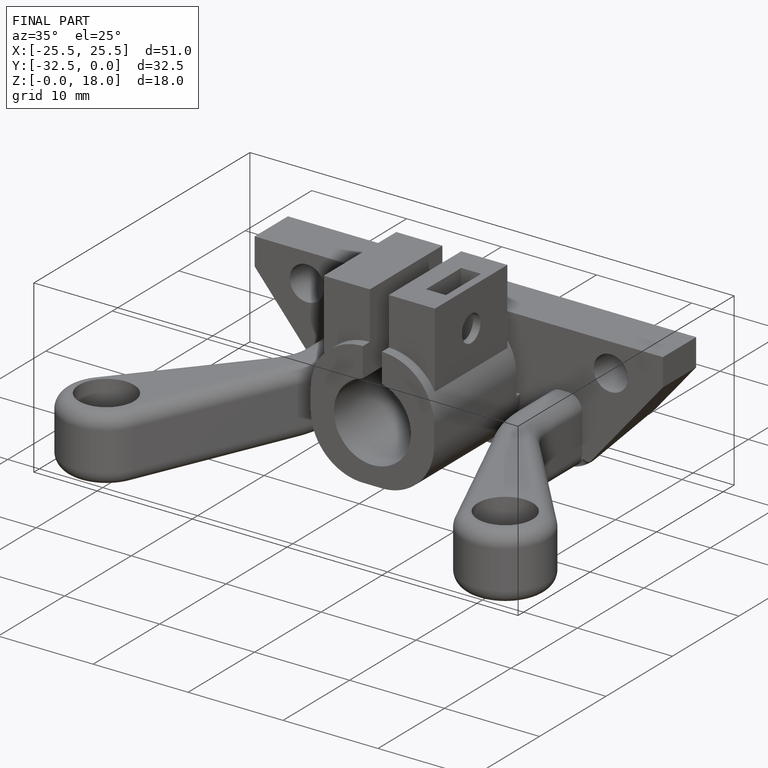
[diagram: finished part — iso view with bounding-box wireframe]
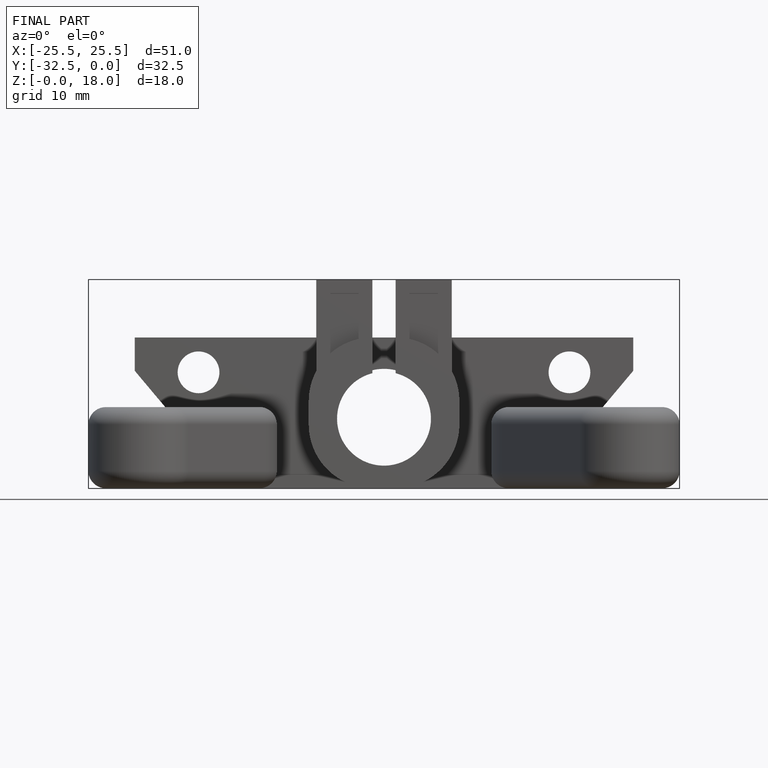
[diagram: finished part — front view with bounding-box wireframe]
